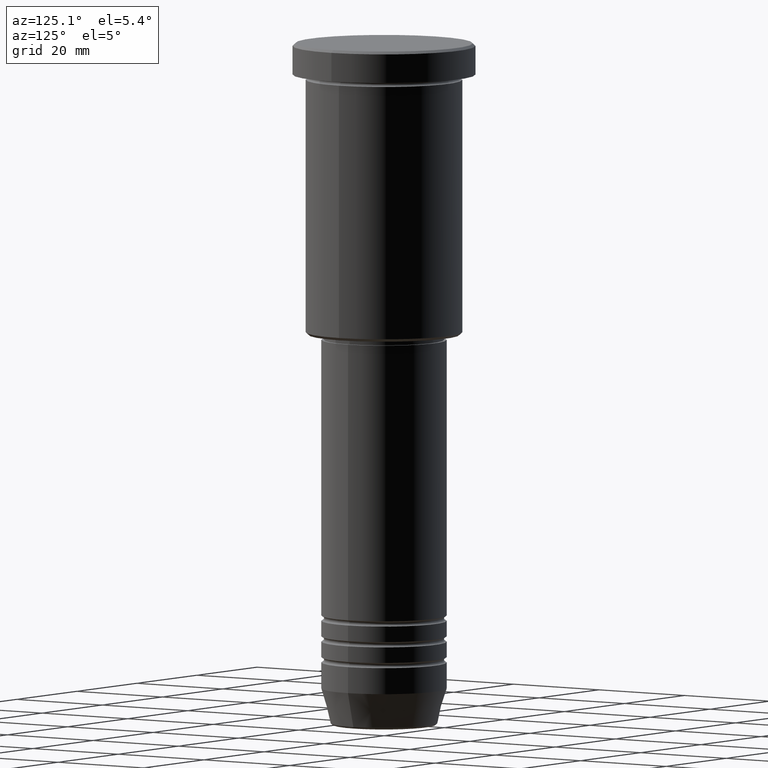
[diagram: clean part render]
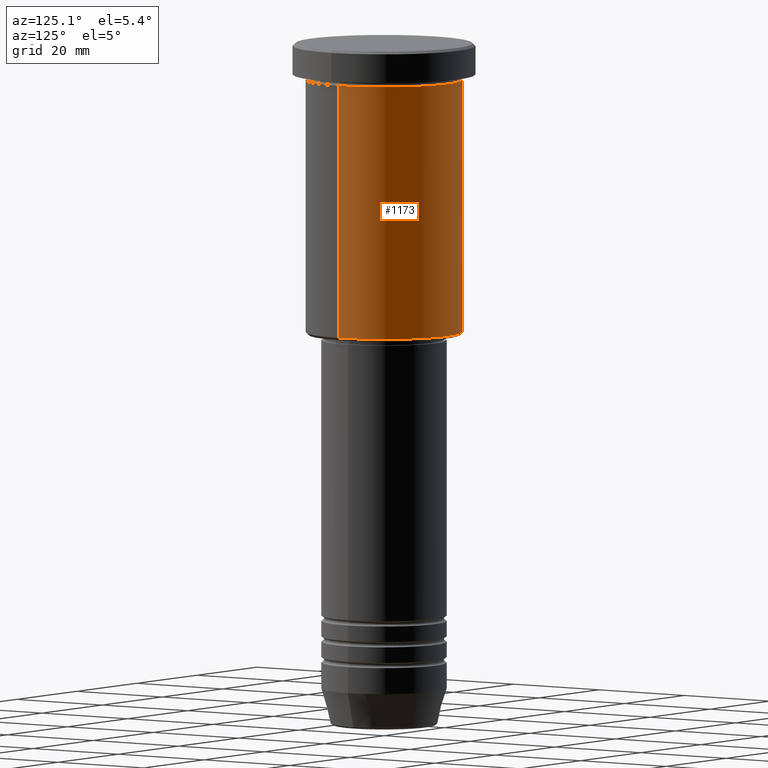
[diagram: same view with one face highlighted and labeled with its STEP entity id]
A machine part, auxiliary view. The second image highlights one B-rep face of the part: STEP entity #1173.
In plain terms, the highlighted cylindrical surface (partial cylindrical patch) has radius 15 mm, axis along (-0, -0, 1).
Its self-contained STEP definition (entity closure, byte-faithful):
#65 = LINE ( 'NONE', #526, #781 ) ;
#151 = DIRECTION ( 'NONE',  ( -0.000000000000000000, -0.000000000000000000, 1.000000000000000000 ) ) ;
#181 = DIRECTION ( 'NONE',  ( -0.000000000000000000, -0.000000000000000000, 1.000000000000000000 ) ) ;
#220 = CARTESIAN_POINT ( 'NONE',  ( 15.00000000000000000, 0.000000000000000000, -6.999999999999995559 ) ) ;
#232 = CARTESIAN_POINT ( 'NONE',  ( 15.00000000000000000, 0.000000000000000000, -55.49999999999997868 ) ) ;
#239 = DIRECTION ( 'NONE',  ( -0.000000000000000000, -0.000000000000000000, 1.000000000000000000 ) ) ;
#243 = CARTESIAN_POINT ( 'NONE',  ( 0.000000000000000000, 0.000000000000000000, 0.000000000000000000 ) ) ;
#263 = VERTEX_POINT ( 'NONE', #220 ) ;
#312 = EDGE_LOOP ( 'NONE', ( #1106, #963, #1129, #1051 ) ) ;
#319 = LINE ( 'NONE', #1133, #1091 ) ;
#461 = CIRCLE ( 'NONE', #1128, 15.00000000000000000 ) ;
#463 = AXIS2_PLACEMENT_3D ( 'NONE', #999, #181, #544 ) ;
#483 = CARTESIAN_POINT ( 'NONE',  ( -15.00000000000000000, 1.836970198721029589E-15, -55.49999999999997868 ) ) ;
#518 = DIRECTION ( 'NONE',  ( 1.000000000000000000, 0.000000000000000000, 0.000000000000000000 ) ) ;
#526 = CARTESIAN_POINT ( 'NONE',  ( -15.00000000000000000, 1.836970198721029589E-15, 0.000000000000000000 ) ) ;
#544 = DIRECTION ( 'NONE',  ( -1.000000000000000000, 0.000000000000000000, 0.000000000000000000 ) ) ;
#553 = EDGE_CURVE ( 'NONE', #1152, #263, #319, .T. ) ;
#604 = EDGE_CURVE ( 'NONE', #263, #1179, #461, .T. ) ;
#642 = EDGE_CURVE ( 'NONE', #945, #1179, #65, .T. ) ;
#662 = DIRECTION ( 'NONE',  ( -0.000000000000000000, -0.000000000000000000, 1.000000000000000000 ) ) ;
#729 = AXIS2_PLACEMENT_3D ( 'NONE', #243, #151, #518 ) ;
#781 = VECTOR ( 'NONE', #786, 1000.000000000000000 ) ;
#786 = DIRECTION ( 'NONE',  ( -0.000000000000000000, -0.000000000000000000, 1.000000000000000000 ) ) ;
#790 = DIRECTION ( 'NONE',  ( 1.000000000000000000, 0.000000000000000000, 0.000000000000000000 ) ) ;
#796 = CARTESIAN_POINT ( 'NONE',  ( 0.000000000000000000, 0.000000000000000000, -6.999999999999995559 ) ) ;
#849 = EDGE_CURVE ( 'NONE', #1152, #945, #1111, .T. ) ;
#945 = VERTEX_POINT ( 'NONE', #483 ) ;
#963 = ORIENTED_EDGE ( 'NONE', *, *, #642, .T. ) ;
#999 = CARTESIAN_POINT ( 'NONE',  ( 0.000000000000000000, 0.000000000000000000, -55.49999999999997868 ) ) ;
#1051 = ORIENTED_EDGE ( 'NONE', *, *, #553, .F. ) ;
#1062 = CYLINDRICAL_SURFACE ( 'NONE', #729, 15.00000000000000000 ) ;
#1091 = VECTOR ( 'NONE', #662, 1000.000000000000000 ) ;
#1101 = CARTESIAN_POINT ( 'NONE',  ( -15.00000000000000000, 1.836970198721029589E-15, -6.999999999999995559 ) ) ;
#1106 = ORIENTED_EDGE ( 'NONE', *, *, #849, .T. ) ;
#1111 = CIRCLE ( 'NONE', #463, 15.00000000000000000 ) ;
#1128 = AXIS2_PLACEMENT_3D ( 'NONE', #796, #239, #790 ) ;
#1129 = ORIENTED_EDGE ( 'NONE', *, *, #604, .F. ) ;
#1133 = CARTESIAN_POINT ( 'NONE',  ( 15.00000000000000000, 0.000000000000000000, 0.000000000000000000 ) ) ;
#1152 = VERTEX_POINT ( 'NONE', #232 ) ;
#1153 = FACE_OUTER_BOUND ( 'NONE', #312, .T. ) ;
#1173 = ADVANCED_FACE ( 'NONE', ( #1153 ), #1062, .T. ) ;
#1179 = VERTEX_POINT ( 'NONE', #1101 ) ;